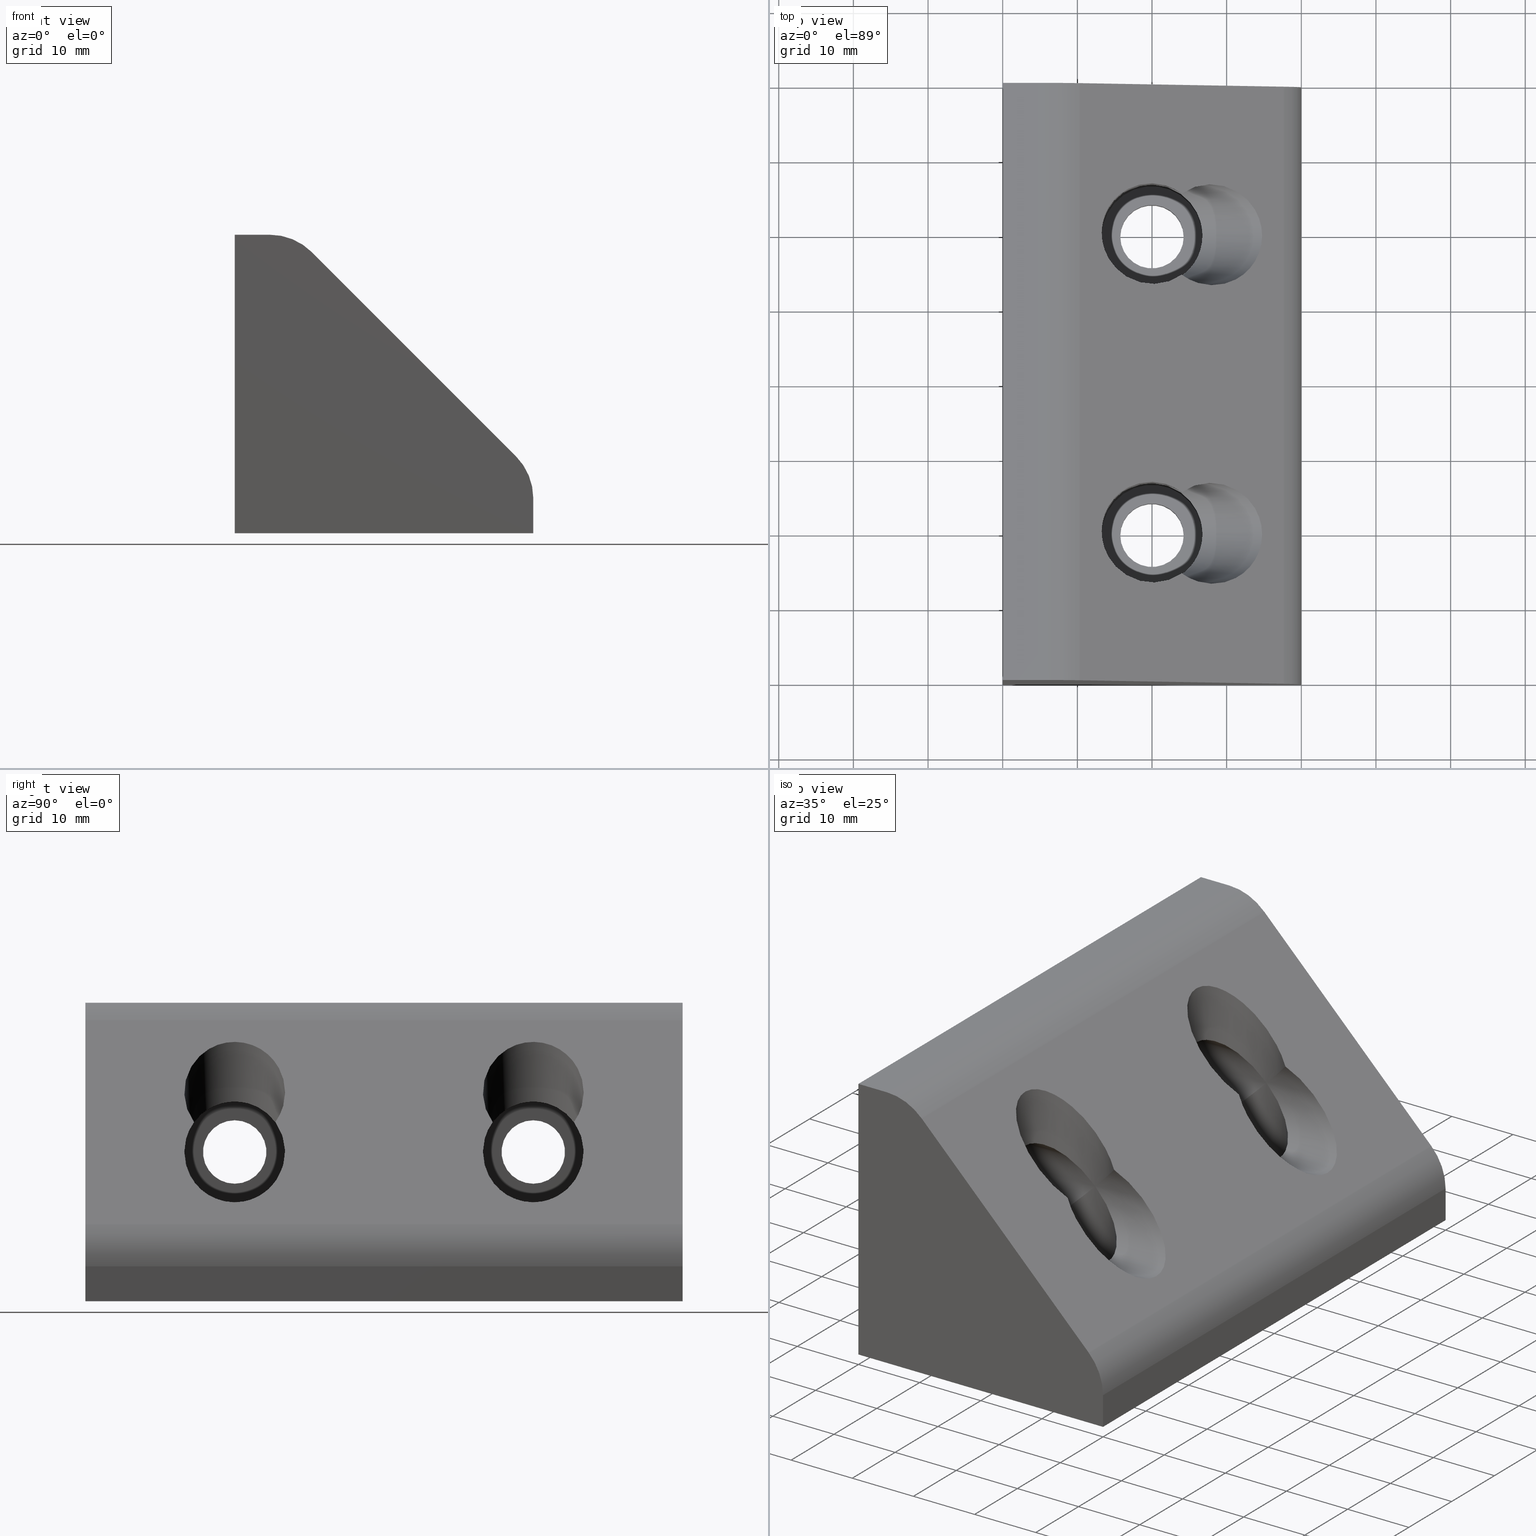
[diagram: canonical four-view strip — front | top / right | iso, engineering-drawing reading convention]
A machine part, canonical four-view strip (front | top / right | iso — engineering-drawing reading convention). The complete STEP part file that produces these views, byte-faithful:
ISO-10303-21;
HEADER;
/* Generated by software containing ST-Developer
 * from STEP Tools, Inc. (www.steptools.com) 
 */

FILE_DESCRIPTION(
/* description */ ('SQUADRETTA 40x40x80'),
/* implementation_level */ '2;1');

FILE_NAME(
/* name */ 'C:\\Users\\tecnico7\\Desktop\\DSQAL0000024.stp',
/* time_stamp */ '2022-07-07T12:08:07+02:00',
/* author */ ('tecnico7'),
/* organization */ (''),
/* preprocessor_version */ 'ST-DEVELOPER v18.1',
/* originating_system */ 'Autodesk Inventor 2022',
/* authorisation */ '');

FILE_SCHEMA (('AUTOMOTIVE_DESIGN { 1 0 10303 214 3 1 1 }'));
ENDSEC;

DATA;
#10=MECHANICAL_DESIGN_GEOMETRIC_PRESENTATION_REPRESENTATION('',(#13),#787);
#11=SHAPE_REPRESENTATION_RELATIONSHIP('SRR','None',#794,#12);
#12=ADVANCED_BREP_SHAPE_REPRESENTATION('',(#14),#786);
#13=STYLED_ITEM('',(#803),#14);
#14=MANIFOLD_SOLID_BREP('Importato1',#434);
#15=FACE_BOUND('',#78,.T.);
#16=FACE_BOUND('',#79,.T.);
#17=FACE_BOUND('',#81,.T.);
#18=FACE_BOUND('',#82,.T.);
#19=FACE_BOUND('',#84,.T.);
#20=FACE_BOUND('',#86,.T.);
#21=FACE_BOUND('',#88,.T.);
#22=FACE_BOUND('',#90,.T.);
#23=FACE_BOUND('',#92,.T.);
#24=FACE_BOUND('',#93,.T.);
#25=PLANE('',#499);
#26=PLANE('',#500);
#27=PLANE('',#501);
#28=PLANE('',#504);
#29=PLANE('',#507);
#30=PLANE('',#508);
#31=PLANE('',#509);
#32=PLANE('',#510);
#33=PLANE('',#511);
#34=PLANE('',#512);
#35=PLANE('',#513);
#36=FACE_OUTER_BOUND('',#61,.T.);
#37=FACE_OUTER_BOUND('',#62,.T.);
#38=FACE_OUTER_BOUND('',#63,.T.);
#39=FACE_OUTER_BOUND('',#64,.T.);
#40=FACE_OUTER_BOUND('',#65,.T.);
#41=FACE_OUTER_BOUND('',#66,.T.);
#42=FACE_OUTER_BOUND('',#67,.T.);
#43=FACE_OUTER_BOUND('',#68,.T.);
#44=FACE_OUTER_BOUND('',#69,.T.);
#45=FACE_OUTER_BOUND('',#70,.T.);
#46=FACE_OUTER_BOUND('',#71,.T.);
#47=FACE_OUTER_BOUND('',#72,.T.);
#48=FACE_OUTER_BOUND('',#73,.T.);
#49=FACE_OUTER_BOUND('',#74,.T.);
#50=FACE_OUTER_BOUND('',#75,.T.);
#51=FACE_OUTER_BOUND('',#76,.T.);
#52=FACE_OUTER_BOUND('',#77,.T.);
#53=FACE_OUTER_BOUND('',#80,.T.);
#54=FACE_OUTER_BOUND('',#83,.T.);
#55=FACE_OUTER_BOUND('',#85,.T.);
#56=FACE_OUTER_BOUND('',#87,.T.);
#57=FACE_OUTER_BOUND('',#89,.T.);
#58=FACE_OUTER_BOUND('',#91,.T.);
#59=FACE_OUTER_BOUND('',#94,.T.);
#60=FACE_OUTER_BOUND('',#95,.T.);
#61=EDGE_LOOP('',(#277,#278,#279,#280,#281,#282));
#62=EDGE_LOOP('',(#283,#284,#285,#286));
#63=EDGE_LOOP('',(#287,#288,#289,#290,#291,#292));
#64=EDGE_LOOP('',(#293,#294,#295,#296));
#65=EDGE_LOOP('',(#297,#298,#299,#300));
#66=EDGE_LOOP('',(#301,#302,#303,#304));
#67=EDGE_LOOP('',(#305,#306,#307,#308,#309,#310));
#68=EDGE_LOOP('',(#311,#312,#313,#314,#315,#316));
#69=EDGE_LOOP('',(#317,#318,#319,#320,#321));
#70=EDGE_LOOP('',(#322,#323,#324,#325,#326));
#71=EDGE_LOOP('',(#327,#328,#329,#330,#331));
#72=EDGE_LOOP('',(#332,#333,#334,#335,#336));
#73=EDGE_LOOP('',(#337,#338,#339,#340));
#74=EDGE_LOOP('',(#341,#342,#343,#344));
#75=EDGE_LOOP('',(#345,#346,#347,#348,#349,#350,#351));
#76=EDGE_LOOP('',(#352,#353,#354,#355,#356,#357,#358));
#77=EDGE_LOOP('',(#359,#360,#361,#362));
#78=EDGE_LOOP('',(#363));
#79=EDGE_LOOP('',(#364));
#80=EDGE_LOOP('',(#365,#366,#367,#368));
#81=EDGE_LOOP('',(#369));
#82=EDGE_LOOP('',(#370));
#83=EDGE_LOOP('',(#371));
#84=EDGE_LOOP('',(#372));
#85=EDGE_LOOP('',(#373));
#86=EDGE_LOOP('',(#374));
#87=EDGE_LOOP('',(#375));
#88=EDGE_LOOP('',(#376));
#89=EDGE_LOOP('',(#377));
#90=EDGE_LOOP('',(#378));
#91=EDGE_LOOP('',(#379,#380,#381,#382));
#92=EDGE_LOOP('',(#383,#384));
#93=EDGE_LOOP('',(#385,#386));
#94=EDGE_LOOP('',(#387,#388,#389,#390));
#95=EDGE_LOOP('',(#391,#392,#393,#394));
#96=CIRCLE('',#461,6.75);
#97=CIRCLE('',#463,4.25000000000001);
#98=CIRCLE('',#464,4.25000000000001);
#99=CIRCLE('',#469,6.75);
#100=CIRCLE('',#471,4.25);
#101=CIRCLE('',#472,4.25);
#102=CIRCLE('',#474,4.25);
#103=CIRCLE('',#475,4.25);
#104=CIRCLE('',#477,4.25000000000001);
#105=CIRCLE('',#478,4.25000000000001);
#106=CIRCLE('',#481,6.75);
#107=CIRCLE('',#485,6.75000000000001);
#108=CIRCLE('',#502,8.);
#109=CIRCLE('',#503,8.);
#110=CIRCLE('',#505,8.);
#111=CIRCLE('',#506,8.);
#112=LINE('',#670,#137);
#113=LINE('',#676,#138);
#114=LINE('',#686,#139);
#115=LINE('',#692,#140);
#116=LINE('',#698,#141);
#117=LINE('',#704,#142);
#118=LINE('',#710,#143);
#119=LINE('',#717,#144);
#120=LINE('',#739,#145);
#121=LINE('',#741,#146);
#122=LINE('',#743,#147);
#123=LINE('',#744,#148);
#124=LINE('',#748,#149);
#125=LINE('',#750,#150);
#126=LINE('',#752,#151);
#127=LINE('',#753,#152);
#128=LINE('',#758,#153);
#129=LINE('',#761,#154);
#130=LINE('',#762,#155);
#131=LINE('',#766,#156);
#132=LINE('',#769,#157);
#133=LINE('',#770,#158);
#134=LINE('',#773,#159);
#135=LINE('',#780,#160);
#136=LINE('',#781,#161);
#137=VECTOR('',#526,6.75);
#138=VECTOR('',#533,4.25000000000001);
#139=VECTOR('',#544,6.75);
#140=VECTOR('',#551,4.25);
#141=VECTOR('',#558,4.25);
#142=VECTOR('',#565,4.25000000000001);
#143=VECTOR('',#572,6.75);
#144=VECTOR('',#581,6.75000000000001);
#145=VECTOR('',#612,4.68629150101524);
#146=VECTOR('',#613,80.);
#147=VECTOR('',#614,4.68629150101524);
#148=VECTOR('',#615,80.);
#149=VECTOR('',#618,4.68629150101524);
#150=VECTOR('',#619,80.);
#151=VECTOR('',#620,4.68629150101524);
#152=VECTOR('',#621,80.);
#153=VECTOR('',#626,38.6274169979695);
#154=VECTOR('',#629,40.);
#155=VECTOR('',#630,40.);
#156=VECTOR('',#633,38.6274169979695);
#157=VECTOR('',#636,40.);
#158=VECTOR('',#637,40.);
#159=VECTOR('',#642,80.);
#160=VECTOR('',#655,80.);
#161=VECTOR('',#656,80.);
#162=ELLIPSE('',#458,9.54594154601841,6.75);
#163=ELLIPSE('',#459,9.54594154601841,6.75);
#164=ELLIPSE('',#460,9.54594154601841,6.75);
#165=ELLIPSE('',#466,9.5459415460184,6.75);
#166=ELLIPSE('',#467,9.54594154601838,6.75);
#167=ELLIPSE('',#468,9.5459415460184,6.75);
#168=ELLIPSE('',#480,9.54594154601839,6.75000000000001);
#169=ELLIPSE('',#482,9.54594154601839,6.75000000000001);
#170=ELLIPSE('',#484,9.54594154601839,6.75);
#171=ELLIPSE('',#486,9.54594154601839,6.75);
#172=ELLIPSE('',#488,9.54594154603601,6.75000000002159);
#173=ELLIPSE('',#489,9.54594154601901,6.75000000000072);
#174=ELLIPSE('',#490,9.5459415460419,6.75000000002809);
#175=ELLIPSE('',#492,9.54594154601712,6.7499999999983);
#176=ELLIPSE('',#493,9.54594154600528,6.74999999998405);
#177=ELLIPSE('',#494,9.54594154601883,6.75000000000078);
#178=ELLIPSE('',#496,9.54594154602177,6.75000000000364);
#179=ELLIPSE('',#498,9.54594154602785,6.75000000001158);
#180=VERTEX_POINT('',#663);
#181=VERTEX_POINT('',#664);
#182=VERTEX_POINT('',#666);
#183=VERTEX_POINT('',#669);
#184=VERTEX_POINT('',#673);
#185=VERTEX_POINT('',#675);
#186=VERTEX_POINT('',#679);
#187=VERTEX_POINT('',#680);
#188=VERTEX_POINT('',#682);
#189=VERTEX_POINT('',#685);
#190=VERTEX_POINT('',#689);
#191=VERTEX_POINT('',#691);
#192=VERTEX_POINT('',#695);
#193=VERTEX_POINT('',#697);
#194=VERTEX_POINT('',#701);
#195=VERTEX_POINT('',#703);
#196=VERTEX_POINT('',#707);
#197=VERTEX_POINT('',#709);
#198=VERTEX_POINT('',#714);
#199=VERTEX_POINT('',#716);
#200=VERTEX_POINT('',#721);
#201=VERTEX_POINT('',#722);
#202=VERTEX_POINT('',#727);
#203=VERTEX_POINT('',#728);
#204=VERTEX_POINT('',#737);
#205=VERTEX_POINT('',#738);
#206=VERTEX_POINT('',#740);
#207=VERTEX_POINT('',#742);
#208=VERTEX_POINT('',#746);
#209=VERTEX_POINT('',#747);
#210=VERTEX_POINT('',#749);
#211=VERTEX_POINT('',#751);
#212=VERTEX_POINT('',#755);
#213=VERTEX_POINT('',#757);
#214=VERTEX_POINT('',#760);
#215=VERTEX_POINT('',#764);
#216=VERTEX_POINT('',#765);
#217=VERTEX_POINT('',#768);
#218=EDGE_CURVE('',#180,#181,#162,.T.);
#219=EDGE_CURVE('',#182,#180,#163,.T.);
#220=EDGE_CURVE('',#181,#182,#164,.T.);
#221=EDGE_CURVE('',#181,#183,#112,.T.);
#222=EDGE_CURVE('',#183,#183,#96,.T.);
#223=EDGE_CURVE('',#184,#184,#97,.T.);
#224=EDGE_CURVE('',#184,#185,#113,.T.);
#225=EDGE_CURVE('',#185,#185,#98,.T.);
#226=EDGE_CURVE('',#186,#187,#165,.T.);
#227=EDGE_CURVE('',#188,#186,#166,.T.);
#228=EDGE_CURVE('',#187,#188,#167,.T.);
#229=EDGE_CURVE('',#187,#189,#114,.T.);
#230=EDGE_CURVE('',#189,#189,#99,.T.);
#231=EDGE_CURVE('',#190,#190,#100,.T.);
#232=EDGE_CURVE('',#190,#191,#115,.T.);
#233=EDGE_CURVE('',#191,#191,#101,.T.);
#234=EDGE_CURVE('',#192,#192,#102,.T.);
#235=EDGE_CURVE('',#192,#193,#116,.T.);
#236=EDGE_CURVE('',#193,#193,#103,.T.);
#237=EDGE_CURVE('',#194,#194,#104,.T.);
#238=EDGE_CURVE('',#194,#195,#117,.T.);
#239=EDGE_CURVE('',#195,#195,#105,.T.);
#240=EDGE_CURVE('',#186,#196,#168,.T.);
#241=EDGE_CURVE('',#196,#197,#118,.T.);
#242=EDGE_CURVE('',#197,#197,#106,.T.);
#243=EDGE_CURVE('',#196,#188,#169,.T.);
#244=EDGE_CURVE('',#180,#198,#170,.T.);
#245=EDGE_CURVE('',#198,#199,#119,.T.);
#246=EDGE_CURVE('',#199,#199,#107,.T.);
#247=EDGE_CURVE('',#198,#182,#171,.T.);
#248=EDGE_CURVE('',#200,#201,#172,.T.);
#249=EDGE_CURVE('',#182,#200,#173,.T.);
#250=EDGE_CURVE('',#201,#180,#174,.T.);
#251=EDGE_CURVE('',#202,#203,#175,.T.);
#252=EDGE_CURVE('',#188,#202,#176,.T.);
#253=EDGE_CURVE('',#203,#186,#177,.T.);
#254=EDGE_CURVE('',#203,#202,#178,.T.);
#255=EDGE_CURVE('',#201,#200,#179,.T.);
#256=EDGE_CURVE('',#204,#205,#120,.T.);
#257=EDGE_CURVE('',#204,#206,#121,.T.);
#258=EDGE_CURVE('',#206,#207,#122,.T.);
#259=EDGE_CURVE('',#205,#207,#123,.T.);
#260=EDGE_CURVE('',#208,#209,#124,.T.);
#261=EDGE_CURVE('',#209,#210,#125,.T.);
#262=EDGE_CURVE('',#211,#210,#126,.T.);
#263=EDGE_CURVE('',#211,#208,#127,.T.);
#264=EDGE_CURVE('',#210,#212,#108,.T.);
#265=EDGE_CURVE('',#212,#213,#128,.T.);
#266=EDGE_CURVE('',#213,#204,#109,.T.);
#267=EDGE_CURVE('',#205,#214,#129,.T.);
#268=EDGE_CURVE('',#214,#211,#130,.T.);
#269=EDGE_CURVE('',#215,#216,#131,.T.);
#270=EDGE_CURVE('',#215,#209,#110,.T.);
#271=EDGE_CURVE('',#217,#208,#132,.T.);
#272=EDGE_CURVE('',#207,#217,#133,.T.);
#273=EDGE_CURVE('',#206,#216,#111,.T.);
#274=EDGE_CURVE('',#214,#217,#134,.T.);
#275=EDGE_CURVE('',#212,#215,#135,.T.);
#276=EDGE_CURVE('',#216,#213,#136,.T.);
#277=ORIENTED_EDGE('',*,*,#218,.F.);
#278=ORIENTED_EDGE('',*,*,#219,.F.);
#279=ORIENTED_EDGE('',*,*,#220,.F.);
#280=ORIENTED_EDGE('',*,*,#221,.T.);
#281=ORIENTED_EDGE('',*,*,#222,.F.);
#282=ORIENTED_EDGE('',*,*,#221,.F.);
#283=ORIENTED_EDGE('',*,*,#223,.F.);
#284=ORIENTED_EDGE('',*,*,#224,.T.);
#285=ORIENTED_EDGE('',*,*,#225,.T.);
#286=ORIENTED_EDGE('',*,*,#224,.F.);
#287=ORIENTED_EDGE('',*,*,#226,.F.);
#288=ORIENTED_EDGE('',*,*,#227,.F.);
#289=ORIENTED_EDGE('',*,*,#228,.F.);
#290=ORIENTED_EDGE('',*,*,#229,.T.);
#291=ORIENTED_EDGE('',*,*,#230,.F.);
#292=ORIENTED_EDGE('',*,*,#229,.F.);
#293=ORIENTED_EDGE('',*,*,#231,.F.);
#294=ORIENTED_EDGE('',*,*,#232,.T.);
#295=ORIENTED_EDGE('',*,*,#233,.T.);
#296=ORIENTED_EDGE('',*,*,#232,.F.);
#297=ORIENTED_EDGE('',*,*,#234,.F.);
#298=ORIENTED_EDGE('',*,*,#235,.T.);
#299=ORIENTED_EDGE('',*,*,#236,.T.);
#300=ORIENTED_EDGE('',*,*,#235,.F.);
#301=ORIENTED_EDGE('',*,*,#237,.F.);
#302=ORIENTED_EDGE('',*,*,#238,.T.);
#303=ORIENTED_EDGE('',*,*,#239,.T.);
#304=ORIENTED_EDGE('',*,*,#238,.F.);
#305=ORIENTED_EDGE('',*,*,#240,.T.);
#306=ORIENTED_EDGE('',*,*,#241,.T.);
#307=ORIENTED_EDGE('',*,*,#242,.F.);
#308=ORIENTED_EDGE('',*,*,#241,.F.);
#309=ORIENTED_EDGE('',*,*,#243,.T.);
#310=ORIENTED_EDGE('',*,*,#227,.T.);
#311=ORIENTED_EDGE('',*,*,#244,.T.);
#312=ORIENTED_EDGE('',*,*,#245,.T.);
#313=ORIENTED_EDGE('',*,*,#246,.F.);
#314=ORIENTED_EDGE('',*,*,#245,.F.);
#315=ORIENTED_EDGE('',*,*,#247,.T.);
#316=ORIENTED_EDGE('',*,*,#219,.T.);
#317=ORIENTED_EDGE('',*,*,#248,.F.);
#318=ORIENTED_EDGE('',*,*,#249,.F.);
#319=ORIENTED_EDGE('',*,*,#247,.F.);
#320=ORIENTED_EDGE('',*,*,#244,.F.);
#321=ORIENTED_EDGE('',*,*,#250,.F.);
#322=ORIENTED_EDGE('',*,*,#251,.F.);
#323=ORIENTED_EDGE('',*,*,#252,.F.);
#324=ORIENTED_EDGE('',*,*,#243,.F.);
#325=ORIENTED_EDGE('',*,*,#240,.F.);
#326=ORIENTED_EDGE('',*,*,#253,.F.);
#327=ORIENTED_EDGE('',*,*,#254,.F.);
#328=ORIENTED_EDGE('',*,*,#253,.T.);
#329=ORIENTED_EDGE('',*,*,#226,.T.);
#330=ORIENTED_EDGE('',*,*,#228,.T.);
#331=ORIENTED_EDGE('',*,*,#252,.T.);
#332=ORIENTED_EDGE('',*,*,#255,.F.);
#333=ORIENTED_EDGE('',*,*,#250,.T.);
#334=ORIENTED_EDGE('',*,*,#218,.T.);
#335=ORIENTED_EDGE('',*,*,#220,.T.);
#336=ORIENTED_EDGE('',*,*,#249,.T.);
#337=ORIENTED_EDGE('',*,*,#256,.F.);
#338=ORIENTED_EDGE('',*,*,#257,.T.);
#339=ORIENTED_EDGE('',*,*,#258,.T.);
#340=ORIENTED_EDGE('',*,*,#259,.F.);
#341=ORIENTED_EDGE('',*,*,#260,.T.);
#342=ORIENTED_EDGE('',*,*,#261,.T.);
#343=ORIENTED_EDGE('',*,*,#262,.F.);
#344=ORIENTED_EDGE('',*,*,#263,.T.);
#345=ORIENTED_EDGE('',*,*,#262,.T.);
#346=ORIENTED_EDGE('',*,*,#264,.T.);
#347=ORIENTED_EDGE('',*,*,#265,.T.);
#348=ORIENTED_EDGE('',*,*,#266,.T.);
#349=ORIENTED_EDGE('',*,*,#256,.T.);
#350=ORIENTED_EDGE('',*,*,#267,.T.);
#351=ORIENTED_EDGE('',*,*,#268,.T.);
#352=ORIENTED_EDGE('',*,*,#269,.F.);
#353=ORIENTED_EDGE('',*,*,#270,.T.);
#354=ORIENTED_EDGE('',*,*,#260,.F.);
#355=ORIENTED_EDGE('',*,*,#271,.F.);
#356=ORIENTED_EDGE('',*,*,#272,.F.);
#357=ORIENTED_EDGE('',*,*,#258,.F.);
#358=ORIENTED_EDGE('',*,*,#273,.T.);
#359=ORIENTED_EDGE('',*,*,#272,.T.);
#360=ORIENTED_EDGE('',*,*,#274,.F.);
#361=ORIENTED_EDGE('',*,*,#267,.F.);
#362=ORIENTED_EDGE('',*,*,#259,.T.);
#363=ORIENTED_EDGE('',*,*,#231,.T.);
#364=ORIENTED_EDGE('',*,*,#223,.T.);
#365=ORIENTED_EDGE('',*,*,#271,.T.);
#366=ORIENTED_EDGE('',*,*,#263,.F.);
#367=ORIENTED_EDGE('',*,*,#268,.F.);
#368=ORIENTED_EDGE('',*,*,#274,.T.);
#369=ORIENTED_EDGE('',*,*,#237,.T.);
#370=ORIENTED_EDGE('',*,*,#234,.T.);
#371=ORIENTED_EDGE('',*,*,#246,.T.);
#372=ORIENTED_EDGE('',*,*,#239,.F.);
#373=ORIENTED_EDGE('',*,*,#242,.T.);
#374=ORIENTED_EDGE('',*,*,#236,.F.);
#375=ORIENTED_EDGE('',*,*,#230,.T.);
#376=ORIENTED_EDGE('',*,*,#233,.F.);
#377=ORIENTED_EDGE('',*,*,#222,.T.);
#378=ORIENTED_EDGE('',*,*,#225,.F.);
#379=ORIENTED_EDGE('',*,*,#265,.F.);
#380=ORIENTED_EDGE('',*,*,#275,.T.);
#381=ORIENTED_EDGE('',*,*,#269,.T.);
#382=ORIENTED_EDGE('',*,*,#276,.T.);
#383=ORIENTED_EDGE('',*,*,#254,.T.);
#384=ORIENTED_EDGE('',*,*,#251,.T.);
#385=ORIENTED_EDGE('',*,*,#255,.T.);
#386=ORIENTED_EDGE('',*,*,#248,.T.);
#387=ORIENTED_EDGE('',*,*,#273,.F.);
#388=ORIENTED_EDGE('',*,*,#257,.F.);
#389=ORIENTED_EDGE('',*,*,#266,.F.);
#390=ORIENTED_EDGE('',*,*,#276,.F.);
#391=ORIENTED_EDGE('',*,*,#270,.F.);
#392=ORIENTED_EDGE('',*,*,#275,.F.);
#393=ORIENTED_EDGE('',*,*,#264,.F.);
#394=ORIENTED_EDGE('',*,*,#261,.F.);
#395=CYLINDRICAL_SURFACE('',#457,6.75);
#396=CYLINDRICAL_SURFACE('',#462,4.25000000000001);
#397=CYLINDRICAL_SURFACE('',#465,6.75);
#398=CYLINDRICAL_SURFACE('',#470,4.25);
#399=CYLINDRICAL_SURFACE('',#473,4.25);
#400=CYLINDRICAL_SURFACE('',#476,4.25000000000001);
#401=CYLINDRICAL_SURFACE('',#479,6.75);
#402=CYLINDRICAL_SURFACE('',#483,6.75000000000001);
#403=CYLINDRICAL_SURFACE('',#487,6.75);
#404=CYLINDRICAL_SURFACE('',#491,6.75);
#405=CYLINDRICAL_SURFACE('',#495,6.75);
#406=CYLINDRICAL_SURFACE('',#497,6.75000000000001);
#407=CYLINDRICAL_SURFACE('',#514,8.);
#408=CYLINDRICAL_SURFACE('',#515,8.);
#409=ADVANCED_FACE('',(#36),#395,.F.);
#410=ADVANCED_FACE('',(#37),#396,.F.);
#411=ADVANCED_FACE('',(#38),#397,.F.);
#412=ADVANCED_FACE('',(#39),#398,.F.);
#413=ADVANCED_FACE('',(#40),#399,.F.);
#414=ADVANCED_FACE('',(#41),#400,.F.);
#415=ADVANCED_FACE('',(#42),#401,.F.);
#416=ADVANCED_FACE('',(#43),#402,.F.);
#417=ADVANCED_FACE('',(#44),#403,.F.);
#418=ADVANCED_FACE('',(#45),#404,.F.);
#419=ADVANCED_FACE('',(#46),#405,.F.);
#420=ADVANCED_FACE('',(#47),#406,.F.);
#421=ADVANCED_FACE('',(#48),#25,.F.);
#422=ADVANCED_FACE('',(#49),#26,.F.);
#423=ADVANCED_FACE('',(#50),#27,.T.);
#424=ADVANCED_FACE('',(#51),#28,.F.);
#425=ADVANCED_FACE('',(#52,#15,#16),#29,.F.);
#426=ADVANCED_FACE('',(#53,#17,#18),#30,.F.);
#427=ADVANCED_FACE('',(#54,#19),#31,.F.);
#428=ADVANCED_FACE('',(#55,#20),#32,.F.);
#429=ADVANCED_FACE('',(#56,#21),#33,.F.);
#430=ADVANCED_FACE('',(#57,#22),#34,.F.);
#431=ADVANCED_FACE('',(#58,#23,#24),#35,.T.);
#432=ADVANCED_FACE('',(#59),#407,.T.);
#433=ADVANCED_FACE('',(#60),#408,.T.);
#434=CLOSED_SHELL('',(#409,#410,#411,#412,#413,#414,#415,#416,#417,#418,
#419,#420,#421,#422,#423,#424,#425,#426,#427,#428,#429,#430,#431,#432,#433));
#435=DERIVED_UNIT_ELEMENT(#438,1.);
#436=DERIVED_UNIT_ELEMENT(#789,-3.);
#437=DIMENSIONAL_EXPONENTS(1.,0.,0.,0.,0.,0.,0.);
#438=(
CONVERSION_BASED_UNIT('gram',#440)
MASS_UNIT()
NAMED_UNIT(#437)
);
#439=(
MASS_UNIT()
NAMED_UNIT(*)
SI_UNIT(.KILO.,.GRAM.)
);
#440=MASS_MEASURE_WITH_UNIT(MASS_MEASURE(0.001),#439);
#441=DERIVED_UNIT((#435,#436));
#442=MEASURE_REPRESENTATION_ITEM('density measure',
POSITIVE_RATIO_MEASURE(2.71),#441);
#443=PROPERTY_DEFINITION_REPRESENTATION(#448,#445);
#444=PROPERTY_DEFINITION_REPRESENTATION(#449,#446);
#445=REPRESENTATION('material name',(#447),#786);
#446=REPRESENTATION('density',(#442),#786);
#447=DESCRIPTIVE_REPRESENTATION_ITEM('ALLUMINIO','ALLUMINIO');
#448=PROPERTY_DEFINITION('material property','material name',#796);
#449=PROPERTY_DEFINITION('material property','density of part',#796);
#450=DATE_TIME_ROLE('creation_date');
#451=APPLIED_DATE_AND_TIME_ASSIGNMENT(#452,#450,(#796));
#452=DATE_AND_TIME(#453,#454);
#453=CALENDAR_DATE(2012,28,11);
#454=LOCAL_TIME(0,0,0.,#455);
#455=COORDINATED_UNIVERSAL_TIME_OFFSET(0,0,.BEHIND.);
#456=AXIS2_PLACEMENT_3D('placement',#661,#516,#517);
#457=AXIS2_PLACEMENT_3D('',#662,#518,#519);
#458=AXIS2_PLACEMENT_3D('',#665,#520,#521);
#459=AXIS2_PLACEMENT_3D('',#667,#522,#523);
#460=AXIS2_PLACEMENT_3D('',#668,#524,#525);
#461=AXIS2_PLACEMENT_3D('',#671,#527,#528);
#462=AXIS2_PLACEMENT_3D('',#672,#529,#530);
#463=AXIS2_PLACEMENT_3D('',#674,#531,#532);
#464=AXIS2_PLACEMENT_3D('',#677,#534,#535);
#465=AXIS2_PLACEMENT_3D('',#678,#536,#537);
#466=AXIS2_PLACEMENT_3D('',#681,#538,#539);
#467=AXIS2_PLACEMENT_3D('',#683,#540,#541);
#468=AXIS2_PLACEMENT_3D('',#684,#542,#543);
#469=AXIS2_PLACEMENT_3D('',#687,#545,#546);
#470=AXIS2_PLACEMENT_3D('',#688,#547,#548);
#471=AXIS2_PLACEMENT_3D('',#690,#549,#550);
#472=AXIS2_PLACEMENT_3D('',#693,#552,#553);
#473=AXIS2_PLACEMENT_3D('',#694,#554,#555);
#474=AXIS2_PLACEMENT_3D('',#696,#556,#557);
#475=AXIS2_PLACEMENT_3D('',#699,#559,#560);
#476=AXIS2_PLACEMENT_3D('',#700,#561,#562);
#477=AXIS2_PLACEMENT_3D('',#702,#563,#564);
#478=AXIS2_PLACEMENT_3D('',#705,#566,#567);
#479=AXIS2_PLACEMENT_3D('',#706,#568,#569);
#480=AXIS2_PLACEMENT_3D('',#708,#570,#571);
#481=AXIS2_PLACEMENT_3D('',#711,#573,#574);
#482=AXIS2_PLACEMENT_3D('',#712,#575,#576);
#483=AXIS2_PLACEMENT_3D('',#713,#577,#578);
#484=AXIS2_PLACEMENT_3D('',#715,#579,#580);
#485=AXIS2_PLACEMENT_3D('',#718,#582,#583);
#486=AXIS2_PLACEMENT_3D('',#719,#584,#585);
#487=AXIS2_PLACEMENT_3D('',#720,#586,#587);
#488=AXIS2_PLACEMENT_3D('',#723,#588,#589);
#489=AXIS2_PLACEMENT_3D('',#724,#590,#591);
#490=AXIS2_PLACEMENT_3D('',#725,#592,#593);
#491=AXIS2_PLACEMENT_3D('',#726,#594,#595);
#492=AXIS2_PLACEMENT_3D('',#729,#596,#597);
#493=AXIS2_PLACEMENT_3D('',#730,#598,#599);
#494=AXIS2_PLACEMENT_3D('',#731,#600,#601);
#495=AXIS2_PLACEMENT_3D('',#732,#602,#603);
#496=AXIS2_PLACEMENT_3D('',#733,#604,#605);
#497=AXIS2_PLACEMENT_3D('',#734,#606,#607);
#498=AXIS2_PLACEMENT_3D('',#735,#608,#609);
#499=AXIS2_PLACEMENT_3D('',#736,#610,#611);
#500=AXIS2_PLACEMENT_3D('',#745,#616,#617);
#501=AXIS2_PLACEMENT_3D('',#754,#622,#623);
#502=AXIS2_PLACEMENT_3D('',#756,#624,#625);
#503=AXIS2_PLACEMENT_3D('',#759,#627,#628);
#504=AXIS2_PLACEMENT_3D('',#763,#631,#632);
#505=AXIS2_PLACEMENT_3D('',#767,#634,#635);
#506=AXIS2_PLACEMENT_3D('',#771,#638,#639);
#507=AXIS2_PLACEMENT_3D('',#772,#640,#641);
#508=AXIS2_PLACEMENT_3D('',#774,#643,#644);
#509=AXIS2_PLACEMENT_3D('',#775,#645,#646);
#510=AXIS2_PLACEMENT_3D('',#776,#647,#648);
#511=AXIS2_PLACEMENT_3D('',#777,#649,#650);
#512=AXIS2_PLACEMENT_3D('',#778,#651,#652);
#513=AXIS2_PLACEMENT_3D('',#779,#653,#654);
#514=AXIS2_PLACEMENT_3D('',#782,#657,#658);
#515=AXIS2_PLACEMENT_3D('',#783,#659,#660);
#516=DIRECTION('axis',(0.,0.,1.));
#517=DIRECTION('refdir',(1.,0.,0.));
#518=DIRECTION('center_axis',(0.,0.,-1.));
#519=DIRECTION('ref_axis',(-1.,0.,0.));
#520=DIRECTION('center_axis',(-0.707106781186547,0.,-0.707106781186548));
#521=DIRECTION('ref_axis',(0.707106781186548,-8.07660729775599E-16,-0.707106781186547));
#522=DIRECTION('center_axis',(0.707106781186548,0.,-0.707106781186547));
#523=DIRECTION('ref_axis',(0.707106781186547,-1.2114910946634E-15,0.707106781186548));
#524=DIRECTION('center_axis',(-0.707106781186547,0.,-0.707106781186548));
#525=DIRECTION('ref_axis',(0.707106781186548,-8.07660729775599E-16,-0.707106781186547));
#526=DIRECTION('',(0.,0.,-1.));
#527=DIRECTION('center_axis',(0.,0.,1.));
#528=DIRECTION('ref_axis',(0.,-1.,0.));
#529=DIRECTION('center_axis',(0.,0.,1.));
#530=DIRECTION('ref_axis',(-1.,0.,0.));
#531=DIRECTION('center_axis',(0.,0.,1.));
#532=DIRECTION('ref_axis',(0.,1.,0.));
#533=DIRECTION('',(0.,0.,1.));
#534=DIRECTION('center_axis',(0.,0.,1.));
#535=DIRECTION('ref_axis',(0.,-1.,0.));
#536=DIRECTION('center_axis',(0.,0.,-1.));
#537=DIRECTION('ref_axis',(-1.,0.,0.));
#538=DIRECTION('center_axis',(-0.707106781186547,3.48909435263061E-16,-0.707106781186548));
#539=DIRECTION('ref_axis',(0.707106781186548,1.73988069209882E-15,-0.707106781186547));
#540=DIRECTION('center_axis',(0.707106781186548,-3.48909435263061E-16,-0.707106781186547));
#541=DIRECTION('ref_axis',(0.707106781186547,1.91936085427119E-15,0.707106781186548));
#542=DIRECTION('center_axis',(-0.707106781186547,3.48909435263061E-16,-0.707106781186548));
#543=DIRECTION('ref_axis',(0.707106781186548,1.73988069209882E-15,-0.707106781186547));
#544=DIRECTION('',(0.,0.,-1.));
#545=DIRECTION('center_axis',(0.,0.,1.));
#546=DIRECTION('ref_axis',(0.,-1.,0.));
#547=DIRECTION('center_axis',(0.,0.,1.));
#548=DIRECTION('ref_axis',(-1.,0.,0.));
#549=DIRECTION('center_axis',(0.,0.,1.));
#550=DIRECTION('ref_axis',(0.,1.,0.));
#551=DIRECTION('',(0.,0.,1.));
#552=DIRECTION('center_axis',(0.,0.,1.));
#553=DIRECTION('ref_axis',(0.,-1.,0.));
#554=DIRECTION('center_axis',(1.,0.,0.));
#555=DIRECTION('ref_axis',(0.,0.,1.));
#556=DIRECTION('center_axis',(1.,0.,0.));
#557=DIRECTION('ref_axis',(0.,1.,0.));
#558=DIRECTION('',(1.,0.,0.));
#559=DIRECTION('center_axis',(1.,0.,0.));
#560=DIRECTION('ref_axis',(0.,-1.,0.));
#561=DIRECTION('center_axis',(1.,0.,0.));
#562=DIRECTION('ref_axis',(0.,0.,1.));
#563=DIRECTION('center_axis',(1.,0.,0.));
#564=DIRECTION('ref_axis',(0.,1.,0.));
#565=DIRECTION('',(1.,0.,0.));
#566=DIRECTION('center_axis',(1.,0.,0.));
#567=DIRECTION('ref_axis',(0.,-1.,0.));
#568=DIRECTION('center_axis',(-1.,0.,0.));
#569=DIRECTION('ref_axis',(0.,0.,-1.));
#570=DIRECTION('center_axis',(0.707106781186548,-3.48909435263061E-16,0.707106781186547));
#571=DIRECTION('ref_axis',(0.707106781186548,-1.71511242971904E-15,-0.707106781186548));
#572=DIRECTION('',(-1.,0.,0.));
#573=DIRECTION('center_axis',(1.,0.,0.));
#574=DIRECTION('ref_axis',(0.,1.,0.));
#575=DIRECTION('center_axis',(0.707106781186548,-3.48909435263061E-16,0.707106781186547));
#576=DIRECTION('ref_axis',(0.707106781186548,-1.71511242971904E-15,-0.707106781186548));
#577=DIRECTION('center_axis',(-1.,0.,0.));
#578=DIRECTION('ref_axis',(0.,0.,-1.));
#579=DIRECTION('center_axis',(0.707106781186548,0.,0.707106781186547));
#580=DIRECTION('ref_axis',(0.707106781186547,-8.97400810861782E-16,-0.707106781186548));
#581=DIRECTION('',(-1.,0.,0.));
#582=DIRECTION('center_axis',(1.,0.,0.));
#583=DIRECTION('ref_axis',(0.,1.,0.));
#584=DIRECTION('center_axis',(0.707106781186548,0.,0.707106781186547));
#585=DIRECTION('ref_axis',(0.707106781186547,-8.97400810861782E-16,-0.707106781186548));
#586=DIRECTION('center_axis',(0.,0.,-1.));
#587=DIRECTION('ref_axis',(-1.,-7.04481399828022E-16,0.));
#588=DIRECTION('center_axis',(-0.707106781186548,0.,-0.707106781186548));
#589=DIRECTION('ref_axis',(0.707106781186547,1.47029705950025E-12,-0.707106781186547));
#590=DIRECTION('center_axis',(-0.70710678118655,1.2868327747778E-14,0.707106781186545));
#591=DIRECTION('ref_axis',(0.707106781186545,-6.75823930133867E-14,0.70710678118655));
#592=DIRECTION('center_axis',(-0.707106781186549,-4.02135242118085E-15,
0.707106781186547));
#593=DIRECTION('ref_axis',(0.707106781186546,2.09357750650917E-12,0.707106781186548));
#594=DIRECTION('center_axis',(0.,0.,-1.));
#595=DIRECTION('ref_axis',(-1.,1.83697019872103E-16,0.));
#596=DIRECTION('center_axis',(-0.707106781186549,8.04270484236121E-16,-0.707106781186546));
#597=DIRECTION('ref_axis',(0.707106781186546,-6.86880464522745E-14,-0.707106781186549));
#598=DIRECTION('center_axis',(-0.707106781186548,8.0427048423612E-15,0.707106781186547));
#599=DIRECTION('ref_axis',(0.707106781186547,1.13829514808927E-12,0.707106781186548));
#600=DIRECTION('center_axis',(-0.707106781186548,-4.82562290541674E-15,
0.707106781186547));
#601=DIRECTION('ref_axis',(0.707106781186547,2.2503567120596E-14,0.707106781186548));
#602=DIRECTION('center_axis',(-1.,0.,0.));
#603=DIRECTION('ref_axis',(0.,-1.83697019872103E-16,-1.));
#604=DIRECTION('center_axis',(-0.707106781186552,-3.61921717906261E-14,
-0.707106781186543));
#605=DIRECTION('ref_axis',(0.707106781186543,3.65393236660301E-13,-0.707106781186552));
#606=DIRECTION('center_axis',(-1.,0.,0.));
#607=DIRECTION('ref_axis',(0.,-1.07187543957223E-15,-1.));
#608=DIRECTION('center_axis',(-0.707106781186552,-2.73451964640282E-14,
-0.707106781186543));
#609=DIRECTION('ref_axis',(0.707106781186543,8.41442404316365E-13,-0.707106781186552));
#610=DIRECTION('center_axis',(-1.,0.,0.));
#611=DIRECTION('ref_axis',(0.,0.,1.));
#612=DIRECTION('',(0.,0.,-1.));
#613=DIRECTION('',(0.,-1.,0.));
#614=DIRECTION('',(0.,0.,-1.));
#615=DIRECTION('',(0.,-1.,0.));
#616=DIRECTION('center_axis',(0.,0.,-1.));
#617=DIRECTION('ref_axis',(-1.,0.,0.));
#618=DIRECTION('',(1.,0.,0.));
#619=DIRECTION('',(0.,1.,0.));
#620=DIRECTION('',(1.,0.,0.));
#621=DIRECTION('',(0.,-1.,0.));
#622=DIRECTION('center_axis',(0.,1.,0.));
#623=DIRECTION('ref_axis',(0.,0.,1.));
#624=DIRECTION('center_axis',(0.,1.,0.));
#625=DIRECTION('ref_axis',(-1.,0.,0.));
#626=DIRECTION('',(0.707106781186547,-1.14967358514655E-16,-0.707106781186548));
#627=DIRECTION('center_axis',(0.,1.,0.));
#628=DIRECTION('ref_axis',(-1.,0.,0.));
#629=DIRECTION('',(-1.,0.,0.));
#630=DIRECTION('',(0.,0.,1.));
#631=DIRECTION('center_axis',(0.,1.,0.));
#632=DIRECTION('ref_axis',(0.,0.,1.));
#633=DIRECTION('',(0.707106781186547,-2.29934717029309E-16,-0.707106781186548));
#634=DIRECTION('center_axis',(0.,-1.,0.));
#635=DIRECTION('ref_axis',(-1.,0.,0.));
#636=DIRECTION('',(0.,0.,1.));
#637=DIRECTION('',(-1.,0.,0.));
#638=DIRECTION('center_axis',(0.,-1.,0.));
#639=DIRECTION('ref_axis',(-1.,0.,0.));
#640=DIRECTION('center_axis',(0.,0.,1.));
#641=DIRECTION('ref_axis',(1.,0.,0.));
#642=DIRECTION('',(0.,-1.,0.));
#643=DIRECTION('center_axis',(1.,0.,0.));
#644=DIRECTION('ref_axis',(0.,0.,-1.));
#645=DIRECTION('center_axis',(-1.,0.,0.));
#646=DIRECTION('ref_axis',(0.,0.,1.));
#647=DIRECTION('center_axis',(-1.,0.,0.));
#648=DIRECTION('ref_axis',(0.,0.,1.));
#649=DIRECTION('center_axis',(0.,0.,-1.));
#650=DIRECTION('ref_axis',(-1.,0.,0.));
#651=DIRECTION('center_axis',(0.,0.,-1.));
#652=DIRECTION('ref_axis',(-1.,0.,0.));
#653=DIRECTION('center_axis',(0.707106781186548,-4.32978E-17,0.707106781186547));
#654=DIRECTION('ref_axis',(0.707106781186547,0.,-0.707106781186548));
#655=DIRECTION('',(0.,-1.,0.));
#656=DIRECTION('',(0.,1.,0.));
#657=DIRECTION('center_axis',(0.,-1.,0.));
#658=DIRECTION('ref_axis',(0.923879532511286,0.,0.382683432365092));
#659=DIRECTION('center_axis',(0.,-1.,0.));
#660=DIRECTION('ref_axis',(1.,0.,0.));
#661=CARTESIAN_POINT('',(0.,0.,0.));
#662=CARTESIAN_POINT('Origin',(20.,20.,20.00000001));
#663=CARTESIAN_POINT('',(20.,26.75,20.));
#664=CARTESIAN_POINT('',(26.75,20.,13.25));
#665=CARTESIAN_POINT('Origin',(20.,20.,20.));
#666=CARTESIAN_POINT('',(20.,13.25,20.));
#667=CARTESIAN_POINT('Origin',(20.,20.,20.));
#668=CARTESIAN_POINT('Origin',(20.,20.,20.));
#669=CARTESIAN_POINT('',(26.75,20.,5.));
#670=CARTESIAN_POINT('',(26.75,20.,20.00000001));
#671=CARTESIAN_POINT('Origin',(20.,20.,5.));
#672=CARTESIAN_POINT('Origin',(20.,20.,-9.999994E-9));
#673=CARTESIAN_POINT('',(24.25,20.,-1.22464699940973E-15));
#674=CARTESIAN_POINT('Origin',(20.,20.,-1.224647E-15));
#675=CARTESIAN_POINT('',(24.25,20.,5.00000000000001));
#676=CARTESIAN_POINT('',(24.25,20.,-9.999994E-9));
#677=CARTESIAN_POINT('Origin',(20.,20.,5.00000000000001));
#678=CARTESIAN_POINT('Origin',(20.,-20.,20.00000001));
#679=CARTESIAN_POINT('',(20.,-13.25,20.));
#680=CARTESIAN_POINT('',(26.75,-20.,13.25));
#681=CARTESIAN_POINT('Origin',(20.,-20.,20.));
#682=CARTESIAN_POINT('',(20.,-26.75,20.));
#683=CARTESIAN_POINT('Origin',(20.,-20.,20.));
#684=CARTESIAN_POINT('Origin',(20.,-20.,20.));
#685=CARTESIAN_POINT('',(26.75,-20.,5.));
#686=CARTESIAN_POINT('',(26.75,-20.,20.00000001));
#687=CARTESIAN_POINT('Origin',(20.,-20.,5.));
#688=CARTESIAN_POINT('Origin',(20.,-20.,-9.999994E-9));
#689=CARTESIAN_POINT('',(24.25,-20.,1.22464699940973E-15));
#690=CARTESIAN_POINT('Origin',(20.,-20.,1.224647E-15));
#691=CARTESIAN_POINT('',(24.25,-20.,5.00000000000002));
#692=CARTESIAN_POINT('',(24.25,-20.,-9.999994E-9));
#693=CARTESIAN_POINT('Origin',(20.,-20.,5.00000000000002));
#694=CARTESIAN_POINT('Origin',(-9.999994E-9,-20.,20.));
#695=CARTESIAN_POINT('',(-2.4492940008874E-15,-20.,15.75));
#696=CARTESIAN_POINT('Origin',(-2.449294E-15,-20.,20.));
#697=CARTESIAN_POINT('',(5.,-20.,15.75));
#698=CARTESIAN_POINT('',(-9.999994E-9,-20.,15.75));
#699=CARTESIAN_POINT('Origin',(5.,-20.,20.));
#700=CARTESIAN_POINT('Origin',(-1.0000008E-8,20.,20.));
#701=CARTESIAN_POINT('',(-1.10341999968635E-15,20.,15.75));
#702=CARTESIAN_POINT('Origin',(-1.10342E-15,20.,20.));
#703=CARTESIAN_POINT('',(5.,20.,15.75));
#704=CARTESIAN_POINT('',(-1.0000008E-8,20.,15.75));
#705=CARTESIAN_POINT('Origin',(5.,20.,20.));
#706=CARTESIAN_POINT('Origin',(20.00000001,-20.,20.));
#707=CARTESIAN_POINT('',(13.25,-20.,26.75));
#708=CARTESIAN_POINT('Origin',(20.,-20.,20.));
#709=CARTESIAN_POINT('',(5.,-20.,26.75));
#710=CARTESIAN_POINT('',(20.00000001,-20.,26.75));
#711=CARTESIAN_POINT('Origin',(5.,-20.,20.));
#712=CARTESIAN_POINT('Origin',(20.,-20.,20.));
#713=CARTESIAN_POINT('Origin',(20.00000001,20.,20.));
#714=CARTESIAN_POINT('',(13.25,20.,26.75));
#715=CARTESIAN_POINT('Origin',(20.,20.,20.));
#716=CARTESIAN_POINT('',(5.,20.,26.75));
#717=CARTESIAN_POINT('',(20.00000001,20.,26.75));
#718=CARTESIAN_POINT('Origin',(5.,20.,20.));
#719=CARTESIAN_POINT('Origin',(20.,20.,20.));
#720=CARTESIAN_POINT('Origin',(20.,20.,28.00000001));
#721=CARTESIAN_POINT('',(24.,14.5628592072671,24.));
#722=CARTESIAN_POINT('',(24.,25.4371407927329,24.));
#723=CARTESIAN_POINT('Origin',(19.9999999999927,19.9999999999784,28.0000000000073));
#724=CARTESIAN_POINT('Origin',(19.9999999999997,20.0000000000007,19.9999999999996));
#725=CARTESIAN_POINT('Origin',(19.9999999999896,19.9999999999719,19.9999999999895));
#726=CARTESIAN_POINT('Origin',(20.,-20.,28.00000001));
#727=CARTESIAN_POINT('',(24.,-25.4371407927329,24.));
#728=CARTESIAN_POINT('',(24.,-14.5628592072671,24.));
#729=CARTESIAN_POINT('Origin',(20.0000000000004,-19.9999999999983,27.9999999999997));
#730=CARTESIAN_POINT('Origin',(20.0000000000057,-20.000000000016,20.0000000000056));
#731=CARTESIAN_POINT('Origin',(19.9999999999999,-20.0000000000008,19.9999999999999));
#732=CARTESIAN_POINT('Origin',(28.00000001,-20.,20.));
#733=CARTESIAN_POINT('Origin',(28.0000000000017,-19.9999999999964,19.999999999998));
#734=CARTESIAN_POINT('Origin',(28.00000001,20.,20.));
#735=CARTESIAN_POINT('Origin',(28.000000000004,20.0000000000116,19.9999999999957));
#736=CARTESIAN_POINT('Origin',(40.,44.,-0.234314575050763));
#737=CARTESIAN_POINT('',(40.,40.,4.68629150101524));
#738=CARTESIAN_POINT('',(40.,40.,-2.449294E-15));
#739=CARTESIAN_POINT('',(40.,40.,4.68629150101524));
#740=CARTESIAN_POINT('',(40.,-40.,4.68629150101524));
#741=CARTESIAN_POINT('',(40.,40.,4.68629150101524));
#742=CARTESIAN_POINT('',(40.,-40.,2.449294E-15));
#743=CARTESIAN_POINT('',(40.,-40.,4.68629150101524));
#744=CARTESIAN_POINT('',(40.,40.,-2.449294E-15));
#745=CARTESIAN_POINT('Origin',(4.92060607606601,44.,40.));
#746=CARTESIAN_POINT('',(-4.898587E-15,-40.,40.));
#747=CARTESIAN_POINT('',(4.68629150101524,-40.,40.));
#748=CARTESIAN_POINT('',(-4.898587E-15,-40.,40.));
#749=CARTESIAN_POINT('',(4.68629150101525,40.,40.));
#750=CARTESIAN_POINT('',(4.68629150101524,-40.,40.));
#751=CARTESIAN_POINT('',(4.898587E-15,40.,40.));
#752=CARTESIAN_POINT('',(4.898587E-15,40.,40.));
#753=CARTESIAN_POINT('',(4.898587E-15,40.,40.));
#754=CARTESIAN_POINT('Origin',(42.,40.,-2.));
#755=CARTESIAN_POINT('',(10.3431457505076,40.,37.6568542494924));
#756=CARTESIAN_POINT('Origin',(4.68629150101525,40.,32.));
#757=CARTESIAN_POINT('',(37.6568542494924,40.,10.3431457505076));
#758=CARTESIAN_POINT('',(10.3431457505077,40.,37.6568542494924));
#759=CARTESIAN_POINT('Origin',(32.,40.,4.68629150101524));
#760=CARTESIAN_POINT('',(4.898587E-15,40.,-2.449294E-15));
#761=CARTESIAN_POINT('',(40.,40.,-2.449294E-15));
#762=CARTESIAN_POINT('',(4.898587E-15,40.,-2.449294E-15));
#763=CARTESIAN_POINT('Origin',(42.,-40.,-2.));
#764=CARTESIAN_POINT('',(10.3431457505076,-40.,37.6568542494924));
#765=CARTESIAN_POINT('',(37.6568542494924,-40.,10.3431457505076));
#766=CARTESIAN_POINT('',(10.3431457505076,-40.,37.6568542494924));
#767=CARTESIAN_POINT('Origin',(4.68629150101524,-40.,32.));
#768=CARTESIAN_POINT('',(-4.898587E-15,-40.,2.449294E-15));
#769=CARTESIAN_POINT('',(-4.898587E-15,-40.,2.449294E-15));
#770=CARTESIAN_POINT('',(40.,-40.,2.449294E-15));
#771=CARTESIAN_POINT('Origin',(32.,-40.,4.68629150101524));
#772=CARTESIAN_POINT('Origin',(42.,-44.,2.694223E-15));
#773=CARTESIAN_POINT('',(4.898587E-15,40.,-2.449294E-15));
#774=CARTESIAN_POINT('Origin',(-5.388446E-15,-44.,-2.));
#775=CARTESIAN_POINT('Origin',(5.,27.425,12.575));
#776=CARTESIAN_POINT('Origin',(5.,-12.575,12.575));
#777=CARTESIAN_POINT('Origin',(27.425,-12.575,5.));
#778=CARTESIAN_POINT('Origin',(27.425,27.425,5.));
#779=CARTESIAN_POINT('Origin',(8.9774603255584,-44.,39.0225396744416));
#780=CARTESIAN_POINT('',(10.3431457505076,40.,37.6568542494924));
#781=CARTESIAN_POINT('',(37.6568542494924,-40.,10.3431457505076));
#782=CARTESIAN_POINT('Origin',(32.,40.00000001,4.68629150101524));
#783=CARTESIAN_POINT('Origin',(4.68629150101525,40.00000001,32.));
#784=UNCERTAINTY_MEASURE_WITH_UNIT(LENGTH_MEASURE(0.01),#788,
'DISTANCE_ACCURACY_VALUE',
'Maximum model space distance between geometric entities at asserted c
onnectivities');
#785=UNCERTAINTY_MEASURE_WITH_UNIT(LENGTH_MEASURE(0.01),#788,
'DISTANCE_ACCURACY_VALUE',
'Maximum model space distance between geometric entities at asserted c
onnectivities');
#786=(
GEOMETRIC_REPRESENTATION_CONTEXT(3)
GLOBAL_UNCERTAINTY_ASSIGNED_CONTEXT((#784))
GLOBAL_UNIT_ASSIGNED_CONTEXT((#788,#790,#791))
REPRESENTATION_CONTEXT('','3D')
);
#787=(
GEOMETRIC_REPRESENTATION_CONTEXT(3)
GLOBAL_UNCERTAINTY_ASSIGNED_CONTEXT((#785))
GLOBAL_UNIT_ASSIGNED_CONTEXT((#788,#790,#791))
REPRESENTATION_CONTEXT('','3D')
);
#788=(
LENGTH_UNIT()
NAMED_UNIT(*)
SI_UNIT(.MILLI.,.METRE.)
);
#789=(
LENGTH_UNIT()
NAMED_UNIT(*)
SI_UNIT(.CENTI.,.METRE.)
);
#790=(
NAMED_UNIT(*)
PLANE_ANGLE_UNIT()
SI_UNIT($,.RADIAN.)
);
#791=(
NAMED_UNIT(*)
SI_UNIT($,.STERADIAN.)
SOLID_ANGLE_UNIT()
);
#792=SHAPE_DEFINITION_REPRESENTATION(#793,#794);
#793=PRODUCT_DEFINITION_SHAPE('',$,#796);
#794=SHAPE_REPRESENTATION('',(#456),#786);
#795=PRODUCT_DEFINITION_CONTEXT('part definition',#800,'design');
#796=PRODUCT_DEFINITION('DSQAL0000024','DSQAL0000024',#797,#795);
#797=PRODUCT_DEFINITION_FORMATION('A',$,#802);
#798=PRODUCT_RELATED_PRODUCT_CATEGORY('DSQAL0000024','DSQAL0000024',(#802));
#799=APPLICATION_PROTOCOL_DEFINITION('international standard',
'automotive_design',2009,#800);
#800=APPLICATION_CONTEXT(
'Core Data for Automotive Mechanical Design Process');
#801=PRODUCT_CONTEXT('part definition',#800,'mechanical');
#802=PRODUCT('DSQAL0000024','DSQAL0000024','SQUADRETTA 40x40x80',(#801));
#803=PRESENTATION_STYLE_ASSIGNMENT((#804));
#804=SURFACE_STYLE_USAGE(.BOTH.,#807);
#805=SURFACE_STYLE_RENDERING_WITH_PROPERTIES($,#811,(#806));
#806=SURFACE_STYLE_TRANSPARENT(0.);
#807=SURFACE_SIDE_STYLE('',(#808,#805));
#808=SURFACE_STYLE_FILL_AREA(#809);
#809=FILL_AREA_STYLE('',(#810));
#810=FILL_AREA_STYLE_COLOUR('',#811);
#811=COLOUR_RGB('',0.956862745098039,0.956862745098039,0.956862745098039);
ENDSEC;
END-ISO-10303-21;
